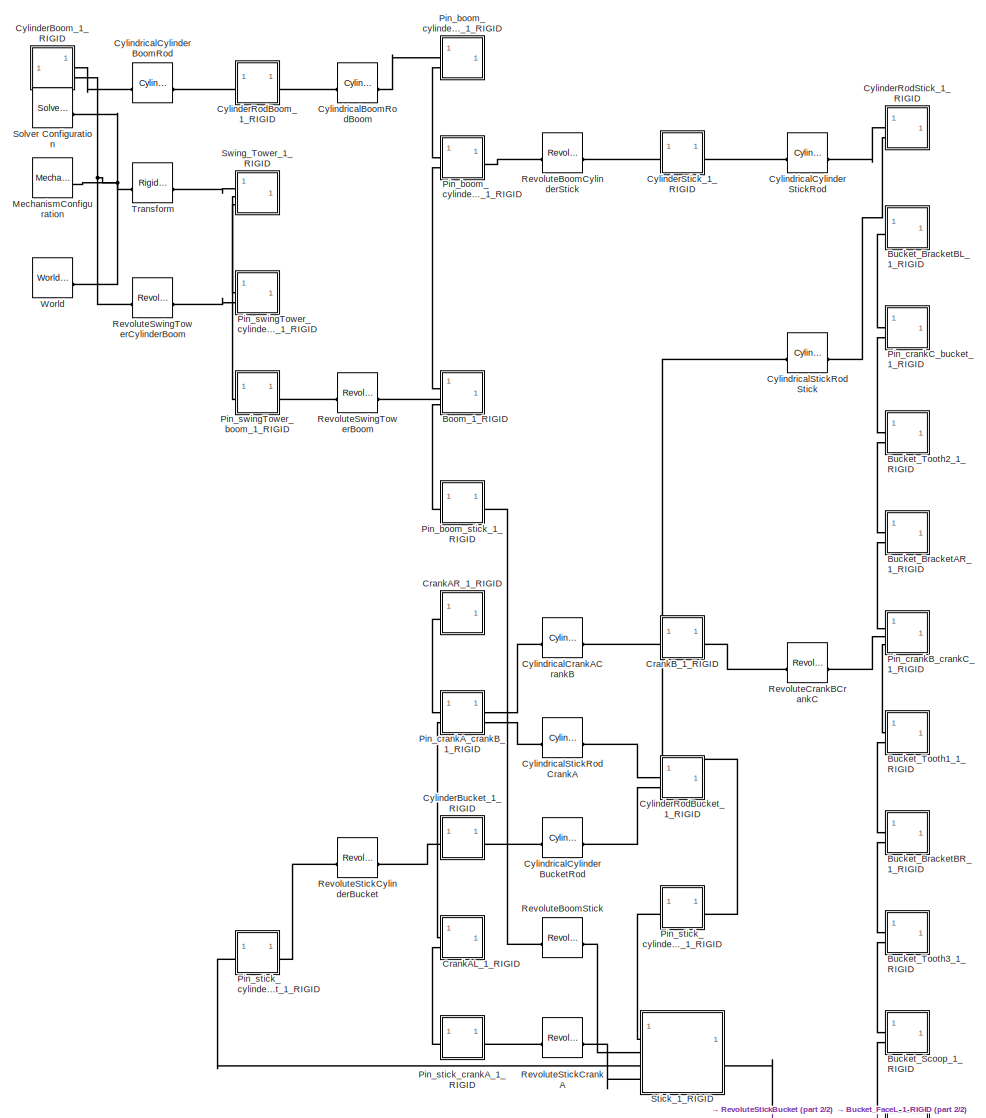
[diagram: root canvas - part 1/2, full width, middle band]
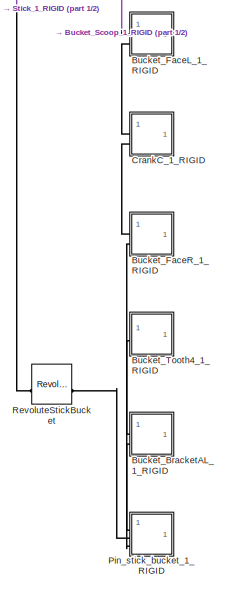
[diagram: root canvas - part 2/2, bottom right region]
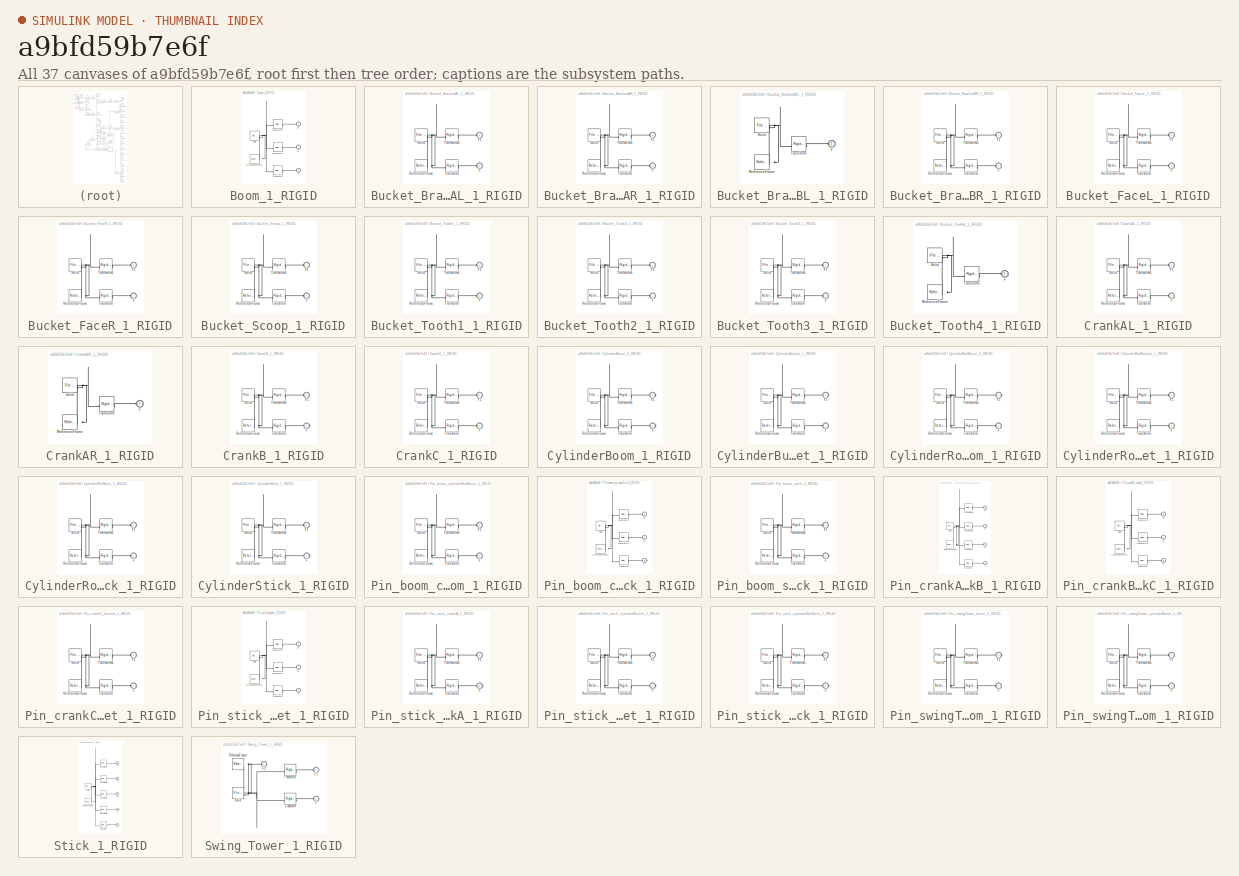
[diagram: thumbnail index - all 37 canvases of the model, root first then tree order]
MODEL slx_a9bfd59b7e6f
KIND model
CONFIG SolverName = VariableStepAuto
WORKSPACE source: external: MATLAB File  (data not in archive)
BLOCK [SubSystem] Boom_1_RIGID
BLOCK [PMIOPort] Boom_1_RIGID/F
  Port = 3
  Side = Left
BLOCK [PMIOPort] Boom_1_RIGID/F1
  Port = 2
  Side = Left
BLOCK [PMIOPort] Boom_1_RIGID/F2
  Side = Left
BLOCK [Reference] Boom_1_RIGID/ReferenceFrame  REF=sm_lib/Frames and
Transforms/Reference
Frame
  SourceBlock = sm_lib/Frames and\nTransforms/Reference\nFrame
  SourceType = Reference\nFrame
BLOCK [Reference] Boom_1_RIGID/Solid  REF=sm_lib/Body Elements/File Solid
  SourceBlock = sm_lib/Body Elements/File Solid
  SourceType = File Solid
BLOCK [Reference] Boom_1_RIGID/Transform  REF=sm_lib/Frames and
Transforms/Rigid
Transform
  SourceBlock = sm_lib/Frames and\nTransforms/Rigid\nTransform
  SourceType = Rigid\nTransform
BLOCK [Reference] Boom_1_RIGID/Transform1  REF=sm_lib/Frames and
Transforms/Rigid
Transform
  SourceBlock = sm_lib/Frames and\nTransforms/Rigid\nTransform
  SourceType = Rigid\nTransform
BLOCK [Reference] Boom_1_RIGID/Transform2  REF=sm_lib/Frames and
Transforms/Rigid
Transform
  SourceBlock = sm_lib/Frames and\nTransforms/Rigid\nTransform
  SourceType = Rigid\nTransform
BLOCK [SubSystem] Bucket_BracketAL_1_RIGID
BLOCK [PMIOPort] Bucket_BracketAL_1_RIGID/F
  Port = 2
  Side = Left
BLOCK [PMIOPort] Bucket_BracketAL_1_RIGID/F1
  Side = Left
BLOCK [Reference] Bucket_BracketAL_1_RIGID/ReferenceFrame  REF=sm_lib/Frames and
Transforms/Reference
Frame
  SourceBlock = sm_lib/Frames and\nTransforms/Reference\nFrame
  SourceType = Reference\nFrame
BLOCK [Reference] Bucket_BracketAL_1_RIGID/Solid  REF=sm_lib/Body Elements/File Solid
  SourceBlock = sm_lib/Body Elements/File Solid
  SourceType = File Solid
BLOCK [Reference] Bucket_BracketAL_1_RIGID/Transform  REF=sm_lib/Frames and
Transforms/Rigid
Transform
  SourceBlock = sm_lib/Frames and\nTransforms/Rigid\nTransform
  SourceType = Rigid\nTransform
BLOCK [Reference] Bucket_BracketAL_1_RIGID/Transform1  REF=sm_lib/Frames and
Transforms/Rigid
Transform
  SourceBlock = sm_lib/Frames and\nTransforms/Rigid\nTransform
  SourceType = Rigid\nTransform
BLOCK [SubSystem] Bucket_BracketAR_1_RIGID
BLOCK [PMIOPort] Bucket_BracketAR_1_RIGID/F
  Side = Left
BLOCK [PMIOPort] Bucket_BracketAR_1_RIGID/F1
  Port = 2
  Side = Left
BLOCK [Reference] Bucket_BracketAR_1_RIGID/ReferenceFrame  REF=sm_lib/Frames and
Transforms/Reference
Frame
  SourceBlock = sm_lib/Frames and\nTransforms/Reference\nFrame
  SourceType = Reference\nFrame
BLOCK [Reference] Bucket_BracketAR_1_RIGID/Solid  REF=sm_lib/Body Elements/File Solid
  SourceBlock = sm_lib/Body Elements/File Solid
  SourceType = File Solid
BLOCK [Reference] Bucket_BracketAR_1_RIGID/Transform  REF=sm_lib/Frames and
Transforms/Rigid
Transform
  SourceBlock = sm_lib/Frames and\nTransforms/Rigid\nTransform
  SourceType = Rigid\nTransform
BLOCK [Reference] Bucket_BracketAR_1_RIGID/Transform1  REF=sm_lib/Frames and
Transforms/Rigid
Transform
  SourceBlock = sm_lib/Frames and\nTransforms/Rigid\nTransform
  SourceType = Rigid\nTransform
BLOCK [SubSystem] Bucket_BracketBL_1_RIGID
BLOCK [PMIOPort] Bucket_BracketBL_1_RIGID/F
  Side = Left
BLOCK [Reference] Bucket_BracketBL_1_RIGID/ReferenceFrame  REF=sm_lib/Frames and
Transforms/Reference
Frame
  SourceBlock = sm_lib/Frames and\nTransforms/Reference\nFrame
  SourceType = Reference\nFrame
BLOCK [Reference] Bucket_BracketBL_1_RIGID/Solid  REF=sm_lib/Body Elements/File Solid
  SourceBlock = sm_lib/Body Elements/File Solid
  SourceType = File Solid
BLOCK [Reference] Bucket_BracketBL_1_RIGID/Transform  REF=sm_lib/Frames and
Transforms/Rigid
Transform
  SourceBlock = sm_lib/Frames and\nTransforms/Rigid\nTransform
  SourceType = Rigid\nTransform
BLOCK [SubSystem] Bucket_BracketBR_1_RIGID
BLOCK [PMIOPort] Bucket_BracketBR_1_RIGID/F
  Port = 2
  Side = Left
BLOCK [PMIOPort] Bucket_BracketBR_1_RIGID/F1
  Side = Left
BLOCK [Reference] Bucket_BracketBR_1_RIGID/ReferenceFrame  REF=sm_lib/Frames and
Transforms/Reference
Frame
  SourceBlock = sm_lib/Frames and\nTransforms/Reference\nFrame
  SourceType = Reference\nFrame
BLOCK [Reference] Bucket_BracketBR_1_RIGID/Solid  REF=sm_lib/Body Elements/File Solid
  SourceBlock = sm_lib/Body Elements/File Solid
  SourceType = File Solid
BLOCK [Reference] Bucket_BracketBR_1_RIGID/Transform  REF=sm_lib/Frames and
Transforms/Rigid
Transform
  SourceBlock = sm_lib/Frames and\nTransforms/Rigid\nTransform
  SourceType = Rigid\nTransform
BLOCK [Reference] Bucket_BracketBR_1_RIGID/Transform1  REF=sm_lib/Frames and
Transforms/Rigid
Transform
  SourceBlock = sm_lib/Frames and\nTransforms/Rigid\nTransform
  SourceType = Rigid\nTransform
BLOCK [SubSystem] Bucket_FaceL_1_RIGID
BLOCK [PMIOPort] Bucket_FaceL_1_RIGID/F
  Side = Left
BLOCK [PMIOPort] Bucket_FaceL_1_RIGID/F1
  Port = 2
  Side = Left
BLOCK [Reference] Bucket_FaceL_1_RIGID/ReferenceFrame  REF=sm_lib/Frames and
Transforms/Reference
Frame
  SourceBlock = sm_lib/Frames and\nTransforms/Reference\nFrame
  SourceType = Reference\nFrame
BLOCK [Reference] Bucket_FaceL_1_RIGID/Solid  REF=sm_lib/Body Elements/File Solid
  SourceBlock = sm_lib/Body Elements/File Solid
  SourceType = File Solid
BLOCK [Reference] Bucket_FaceL_1_RIGID/Transform  REF=sm_lib/Frames and
Transforms/Rigid
Transform
  SourceBlock = sm_lib/Frames and\nTransforms/Rigid\nTransform
  SourceType = Rigid\nTransform
BLOCK [Reference] Bucket_FaceL_1_RIGID/Transform1  REF=sm_lib/Frames and
Transforms/Rigid
Transform
  SourceBlock = sm_lib/Frames and\nTransforms/Rigid\nTransform
  SourceType = Rigid\nTransform
BLOCK [SubSystem] Bucket_FaceR_1_RIGID
BLOCK [PMIOPort] Bucket_FaceR_1_RIGID/F
  Port = 2
  Side = Left
BLOCK [PMIOPort] Bucket_FaceR_1_RIGID/F1
  Side = Left
BLOCK [Reference] Bucket_FaceR_1_RIGID/ReferenceFrame  REF=sm_lib/Frames and
Transforms/Reference
Frame
  SourceBlock = sm_lib/Frames and\nTransforms/Reference\nFrame
  SourceType = Reference\nFrame
BLOCK [Reference] Bucket_FaceR_1_RIGID/Solid  REF=sm_lib/Body Elements/File Solid
  SourceBlock = sm_lib/Body Elements/File Solid
  SourceType = File Solid
BLOCK [Reference] Bucket_FaceR_1_RIGID/Transform  REF=sm_lib/Frames and
Transforms/Rigid
Transform
  SourceBlock = sm_lib/Frames and\nTransforms/Rigid\nTransform
  SourceType = Rigid\nTransform
BLOCK [Reference] Bucket_FaceR_1_RIGID/Transform1  REF=sm_lib/Frames and
Transforms/Rigid
Transform
  SourceBlock = sm_lib/Frames and\nTransforms/Rigid\nTransform
  SourceType = Rigid\nTransform
BLOCK [SubSystem] Bucket_Scoop_1_RIGID
BLOCK [PMIOPort] Bucket_Scoop_1_RIGID/F
  Port = 2
  Side = Left
BLOCK [PMIOPort] Bucket_Scoop_1_RIGID/F1
  Side = Left
BLOCK [Reference] Bucket_Scoop_1_RIGID/ReferenceFrame  REF=sm_lib/Frames and
Transforms/Reference
Frame
  SourceBlock = sm_lib/Frames and\nTransforms/Reference\nFrame
  SourceType = Reference\nFrame
BLOCK [Reference] Bucket_Scoop_1_RIGID/Solid  REF=sm_lib/Body Elements/File Solid
  SourceBlock = sm_lib/Body Elements/File Solid
  SourceType = File Solid
BLOCK [Reference] Bucket_Scoop_1_RIGID/Transform  REF=sm_lib/Frames and
Transforms/Rigid
Transform
  SourceBlock = sm_lib/Frames and\nTransforms/Rigid\nTransform
  SourceType = Rigid\nTransform
BLOCK [Reference] Bucket_Scoop_1_RIGID/Transform1  REF=sm_lib/Frames and
Transforms/Rigid
Transform
  SourceBlock = sm_lib/Frames and\nTransforms/Rigid\nTransform
  SourceType = Rigid\nTransform
BLOCK [SubSystem] Bucket_Tooth1_1_RIGID
BLOCK [PMIOPort] Bucket_Tooth1_1_RIGID/F
  Port = 2
  Side = Left
BLOCK [PMIOPort] Bucket_Tooth1_1_RIGID/F1
  Side = Left
BLOCK [Reference] Bucket_Tooth1_1_RIGID/ReferenceFrame  REF=sm_lib/Frames and
Transforms/Reference
Frame
  SourceBlock = sm_lib/Frames and\nTransforms/Reference\nFrame
  SourceType = Reference\nFrame
BLOCK [Reference] Bucket_Tooth1_1_RIGID/Solid  REF=sm_lib/Body Elements/File Solid
  SourceBlock = sm_lib/Body Elements/File Solid
  SourceType = File Solid
BLOCK [Reference] Bucket_Tooth1_1_RIGID/Transform  REF=sm_lib/Frames and
Transforms/Rigid
Transform
  SourceBlock = sm_lib/Frames and\nTransforms/Rigid\nTransform
  SourceType = Rigid\nTransform
BLOCK [Reference] Bucket_Tooth1_1_RIGID/Transform1  REF=sm_lib/Frames and
Transforms/Rigid
Transform
  SourceBlock = sm_lib/Frames and\nTransforms/Rigid\nTransform
  SourceType = Rigid\nTransform
BLOCK [SubSystem] Bucket_Tooth2_1_RIGID
BLOCK [PMIOPort] Bucket_Tooth2_1_RIGID/F
  Side = Left
BLOCK [PMIOPort] Bucket_Tooth2_1_RIGID/F1
  Port = 2
  Side = Left
BLOCK [Reference] Bucket_Tooth2_1_RIGID/ReferenceFrame  REF=sm_lib/Frames and
Transforms/Reference
Frame
  SourceBlock = sm_lib/Frames and\nTransforms/Reference\nFrame
  SourceType = Reference\nFrame
BLOCK [Reference] Bucket_Tooth2_1_RIGID/Solid  REF=sm_lib/Body Elements/File Solid
  SourceBlock = sm_lib/Body Elements/File Solid
  SourceType = File Solid
BLOCK [Reference] Bucket_Tooth2_1_RIGID/Transform  REF=sm_lib/Frames and
Transforms/Rigid
Transform
  SourceBlock = sm_lib/Frames and\nTransforms/Rigid\nTransform
  SourceType = Rigid\nTransform
BLOCK [Reference] Bucket_Tooth2_1_RIGID/Transform1  REF=sm_lib/Frames and
Transforms/Rigid
Transform
  SourceBlock = sm_lib/Frames and\nTransforms/Rigid\nTransform
  SourceType = Rigid\nTransform
BLOCK [SubSystem] Bucket_Tooth3_1_RIGID
BLOCK [PMIOPort] Bucket_Tooth3_1_RIGID/F
  Port = 2
  Side = Left
BLOCK [PMIOPort] Bucket_Tooth3_1_RIGID/F1
  Side = Left
BLOCK [Reference] Bucket_Tooth3_1_RIGID/ReferenceFrame  REF=sm_lib/Frames and
Transforms/Reference
Frame
  SourceBlock = sm_lib/Frames and\nTransforms/Reference\nFrame
  SourceType = Reference\nFrame
BLOCK [Reference] Bucket_Tooth3_1_RIGID/Solid  REF=sm_lib/Body Elements/File Solid
  SourceBlock = sm_lib/Body Elements/File Solid
  SourceType = File Solid
BLOCK [Reference] Bucket_Tooth3_1_RIGID/Transform  REF=sm_lib/Frames and
Transforms/Rigid
Transform
  SourceBlock = sm_lib/Frames and\nTransforms/Rigid\nTransform
  SourceType = Rigid\nTransform
BLOCK [Reference] Bucket_Tooth3_1_RIGID/Transform1  REF=sm_lib/Frames and
Transforms/Rigid
Transform
  SourceBlock = sm_lib/Frames and\nTransforms/Rigid\nTransform
  SourceType = Rigid\nTransform
BLOCK [SubSystem] Bucket_Tooth4_1_RIGID
BLOCK [PMIOPort] Bucket_Tooth4_1_RIGID/F
  Side = Left
BLOCK [Reference] Bucket_Tooth4_1_RIGID/ReferenceFrame  REF=sm_lib/Frames and
Transforms/Reference
Frame
  SourceBlock = sm_lib/Frames and\nTransforms/Reference\nFrame
  SourceType = Reference\nFrame
BLOCK [Reference] Bucket_Tooth4_1_RIGID/Solid  REF=sm_lib/Body Elements/File Solid
  SourceBlock = sm_lib/Body Elements/File Solid
  SourceType = File Solid
BLOCK [Reference] Bucket_Tooth4_1_RIGID/Transform  REF=sm_lib/Frames and
Transforms/Rigid
Transform
  SourceBlock = sm_lib/Frames and\nTransforms/Rigid\nTransform
  SourceType = Rigid\nTransform
BLOCK [SubSystem] CrankAL_1_RIGID
BLOCK [PMIOPort] CrankAL_1_RIGID/F
  Port = 2
  Side = Left
BLOCK [PMIOPort] CrankAL_1_RIGID/F1
  Side = Left
BLOCK [Reference] CrankAL_1_RIGID/ReferenceFrame  REF=sm_lib/Frames and
Transforms/Reference
Frame
  SourceBlock = sm_lib/Frames and\nTransforms/Reference\nFrame
  SourceType = Reference\nFrame
BLOCK [Reference] CrankAL_1_RIGID/Solid  REF=sm_lib/Body Elements/File Solid
  SourceBlock = sm_lib/Body Elements/File Solid
  SourceType = File Solid
BLOCK [Reference] CrankAL_1_RIGID/Transform  REF=sm_lib/Frames and
Transforms/Rigid
Transform
  SourceBlock = sm_lib/Frames and\nTransforms/Rigid\nTransform
  SourceType = Rigid\nTransform
BLOCK [Reference] CrankAL_1_RIGID/Transform1  REF=sm_lib/Frames and
Transforms/Rigid
Transform
  SourceBlock = sm_lib/Frames and\nTransforms/Rigid\nTransform
  SourceType = Rigid\nTransform
BLOCK [SubSystem] CrankAR_1_RIGID
BLOCK [PMIOPort] CrankAR_1_RIGID/F
  Side = Left
BLOCK [Reference] CrankAR_1_RIGID/ReferenceFrame  REF=sm_lib/Frames and
Transforms/Reference
Frame
  SourceBlock = sm_lib/Frames and\nTransforms/Reference\nFrame
  SourceType = Reference\nFrame
BLOCK [Reference] CrankAR_1_RIGID/Solid  REF=sm_lib/Body Elements/File Solid
  SourceBlock = sm_lib/Body Elements/File Solid
  SourceType = File Solid
BLOCK [Reference] CrankAR_1_RIGID/Transform  REF=sm_lib/Frames and
Transforms/Rigid
Transform
  SourceBlock = sm_lib/Frames and\nTransforms/Rigid\nTransform
  SourceType = Rigid\nTransform
BLOCK [SubSystem] CrankB_1_RIGID
BLOCK [PMIOPort] CrankB_1_RIGID/F
  Port = 2
  Side = Right
BLOCK [PMIOPort] CrankB_1_RIGID/F1
  Side = Left
BLOCK [Reference] CrankB_1_RIGID/ReferenceFrame  REF=sm_lib/Frames and
Transforms/Reference
Frame
  SourceBlock = sm_lib/Frames and\nTransforms/Reference\nFrame
  SourceType = Reference\nFrame
BLOCK [Reference] CrankB_1_RIGID/Solid  REF=sm_lib/Body Elements/File Solid
  SourceBlock = sm_lib/Body Elements/File Solid
  SourceType = File Solid
BLOCK [Reference] CrankB_1_RIGID/Transform  REF=sm_lib/Frames and
Transforms/Rigid
Transform
  SourceBlock = sm_lib/Frames and\nTransforms/Rigid\nTransform
  SourceType = Rigid\nTransform
BLOCK [Reference] CrankB_1_RIGID/Transform1  REF=sm_lib/Frames and
Transforms/Rigid
Transform
  SourceBlock = sm_lib/Frames and\nTransforms/Rigid\nTransform
  SourceType = Rigid\nTransform
BLOCK [SubSystem] CrankC_1_RIGID
BLOCK [PMIOPort] CrankC_1_RIGID/F
  Side = Left
BLOCK [PMIOPort] CrankC_1_RIGID/F1
  Port = 2
  Side = Left
BLOCK [Reference] CrankC_1_RIGID/ReferenceFrame  REF=sm_lib/Frames and
Transforms/Reference
Frame
  SourceBlock = sm_lib/Frames and\nTransforms/Reference\nFrame
  SourceType = Reference\nFrame
BLOCK [Reference] CrankC_1_RIGID/Solid  REF=sm_lib/Body Elements/File Solid
  SourceBlock = sm_lib/Body Elements/File Solid
  SourceType = File Solid
BLOCK [Reference] CrankC_1_RIGID/Transform  REF=sm_lib/Frames and
Transforms/Rigid
Transform
  SourceBlock = sm_lib/Frames and\nTransforms/Rigid\nTransform
  SourceType = Rigid\nTransform
BLOCK [Reference] CrankC_1_RIGID/Transform1  REF=sm_lib/Frames and
Transforms/Rigid
Transform
  SourceBlock = sm_lib/Frames and\nTransforms/Rigid\nTransform
  SourceType = Rigid\nTransform
BLOCK [SubSystem] CylinderBoom_1_RIGID
BLOCK [PMIOPort] CylinderBoom_1_RIGID/F
  Side = Right
BLOCK [PMIOPort] CylinderBoom_1_RIGID/F1
  Port = 2
  Side = Right
BLOCK [Reference] CylinderBoom_1_RIGID/ReferenceFrame  REF=sm_lib/Frames and
Transforms/Reference
Frame
  SourceBlock = sm_lib/Frames and\nTransforms/Reference\nFrame
  SourceType = Reference\nFrame
BLOCK [Reference] CylinderBoom_1_RIGID/Solid  REF=sm_lib/Body Elements/File Solid
  SourceBlock = sm_lib/Body Elements/File Solid
  SourceType = File Solid
BLOCK [Reference] CylinderBoom_1_RIGID/Transform  REF=sm_lib/Frames and
Transforms/Rigid
Transform
  SourceBlock = sm_lib/Frames and\nTransforms/Rigid\nTransform
  SourceType = Rigid\nTransform
BLOCK [Reference] CylinderBoom_1_RIGID/Transform1  REF=sm_lib/Frames and
Transforms/Rigid
Transform
  SourceBlock = sm_lib/Frames and\nTransforms/Rigid\nTransform
  SourceType = Rigid\nTransform
BLOCK [SubSystem] CylinderBucket_1_RIGID
BLOCK [PMIOPort] CylinderBucket_1_RIGID/F
  Side = Left
BLOCK [PMIOPort] CylinderBucket_1_RIGID/F1
  Port = 2
  Side = Right
BLOCK [Reference] CylinderBucket_1_RIGID/ReferenceFrame  REF=sm_lib/Frames and
Transforms/Reference
Frame
  SourceBlock = sm_lib/Frames and\nTransforms/Reference\nFrame
  SourceType = Reference\nFrame
BLOCK [Reference] CylinderBucket_1_RIGID/Solid  REF=sm_lib/Body Elements/File Solid
  SourceBlock = sm_lib/Body Elements/File Solid
  SourceType = File Solid
BLOCK [Reference] CylinderBucket_1_RIGID/Transform  REF=sm_lib/Frames and
Transforms/Rigid
Transform
  SourceBlock = sm_lib/Frames and\nTransforms/Rigid\nTransform
  SourceType = Rigid\nTransform
BLOCK [Reference] CylinderBucket_1_RIGID/Transform1  REF=sm_lib/Frames and
Transforms/Rigid
Transform
  SourceBlock = sm_lib/Frames and\nTransforms/Rigid\nTransform
  SourceType = Rigid\nTransform
BLOCK [SubSystem] CylinderRodBoom_1_RIGID
BLOCK [PMIOPort] CylinderRodBoom_1_RIGID/F
  Side = Left
BLOCK [PMIOPort] CylinderRodBoom_1_RIGID/F1
  Port = 2
  Side = Right
BLOCK [Reference] CylinderRodBoom_1_RIGID/ReferenceFrame  REF=sm_lib/Frames and
Transforms/Reference
Frame
  SourceBlock = sm_lib/Frames and\nTransforms/Reference\nFrame
  SourceType = Reference\nFrame
BLOCK [Reference] CylinderRodBoom_1_RIGID/Solid  REF=sm_lib/Body Elements/File Solid
  SourceBlock = sm_lib/Body Elements/File Solid
  SourceType = File Solid
BLOCK [Reference] CylinderRodBoom_1_RIGID/Transform  REF=sm_lib/Frames and
Transforms/Rigid
Transform
  SourceBlock = sm_lib/Frames and\nTransforms/Rigid\nTransform
  SourceType = Rigid\nTransform
BLOCK [Reference] CylinderRodBoom_1_RIGID/Transform1  REF=sm_lib/Frames and
Transforms/Rigid
Transform
  SourceBlock = sm_lib/Frames and\nTransforms/Rigid\nTransform
  SourceType = Rigid\nTransform
BLOCK [SubSystem] CylinderRodBucket_1_RIGID
BLOCK [PMIOPort] CylinderRodBucket_1_RIGID/F
  Port = 2
  Side = Left
BLOCK [PMIOPort] CylinderRodBucket_1_RIGID/F1
  Side = Left
BLOCK [Reference] CylinderRodBucket_1_RIGID/ReferenceFrame  REF=sm_lib/Frames and
Transforms/Reference
Frame
  SourceBlock = sm_lib/Frames and\nTransforms/Reference\nFrame
  SourceType = Reference\nFrame
BLOCK [Reference] CylinderRodBucket_1_RIGID/Solid  REF=sm_lib/Body Elements/File Solid
  SourceBlock = sm_lib/Body Elements/File Solid
  SourceType = File Solid
BLOCK [Reference] CylinderRodBucket_1_RIGID/Transform  REF=sm_lib/Frames and
Transforms/Rigid
Transform
  SourceBlock = sm_lib/Frames and\nTransforms/Rigid\nTransform
  SourceType = Rigid\nTransform
BLOCK [Reference] CylinderRodBucket_1_RIGID/Transform1  REF=sm_lib/Frames and
Transforms/Rigid
Transform
  SourceBlock = sm_lib/Frames and\nTransforms/Rigid\nTransform
  SourceType = Rigid\nTransform
BLOCK [SubSystem] CylinderRodStick_1_RIGID
BLOCK [PMIOPort] CylinderRodStick_1_RIGID/F
  Side = Left
BLOCK [PMIOPort] CylinderRodStick_1_RIGID/F1
  Port = 2
  Side = Left
BLOCK [Reference] CylinderRodStick_1_RIGID/ReferenceFrame  REF=sm_lib/Frames and
Transforms/Reference
Frame
  SourceBlock = sm_lib/Frames and\nTransforms/Reference\nFrame
  SourceType = Reference\nFrame
BLOCK [Reference] CylinderRodStick_1_RIGID/Solid  REF=sm_lib/Body Elements/File Solid
  SourceBlock = sm_lib/Body Elements/File Solid
  SourceType = File Solid
BLOCK [Reference] CylinderRodStick_1_RIGID/Transform  REF=sm_lib/Frames and
Transforms/Rigid
Transform
  SourceBlock = sm_lib/Frames and\nTransforms/Rigid\nTransform
  SourceType = Rigid\nTransform
BLOCK [Reference] CylinderRodStick_1_RIGID/Transform1  REF=sm_lib/Frames and
Transforms/Rigid
Transform
  SourceBlock = sm_lib/Frames and\nTransforms/Rigid\nTransform
  SourceType = Rigid\nTransform
BLOCK [SubSystem] CylinderStick_1_RIGID
BLOCK [PMIOPort] CylinderStick_1_RIGID/F
  Port = 2
  Side = Right
BLOCK [PMIOPort] CylinderStick_1_RIGID/F1
  Side = Left
BLOCK [Reference] CylinderStick_1_RIGID/ReferenceFrame  REF=sm_lib/Frames and
Transforms/Reference
Frame
  SourceBlock = sm_lib/Frames and\nTransforms/Reference\nFrame
  SourceType = Reference\nFrame
BLOCK [Reference] CylinderStick_1_RIGID/Solid  REF=sm_lib/Body Elements/File Solid
  SourceBlock = sm_lib/Body Elements/File Solid
  SourceType = File Solid
BLOCK [Reference] CylinderStick_1_RIGID/Transform  REF=sm_lib/Frames and
Transforms/Rigid
Transform
  SourceBlock = sm_lib/Frames and\nTransforms/Rigid\nTransform
  SourceType = Rigid\nTransform
BLOCK [Reference] CylinderStick_1_RIGID/Transform1  REF=sm_lib/Frames and
Transforms/Rigid
Transform
  SourceBlock = sm_lib/Frames and\nTransforms/Rigid\nTransform
  SourceType = Rigid\nTransform
BLOCK [Reference] CylindricalBoomRodBoom  REF=sm_lib/Joints/Cylindrical
Joint
  SourceBlock = sm_lib/Joints/Cylindrical\nJoint
  SourceType = Cylindrical\nJoint
BLOCK [Reference] CylindricalCrankACrankB  REF=sm_lib/Joints/Cylindrical
Joint
  SourceBlock = sm_lib/Joints/Cylindrical\nJoint
  SourceType = Cylindrical\nJoint
BLOCK [Reference] CylindricalCylinderBoomRod  REF=sm_lib/Joints/Cylindrical
Joint
  SourceBlock = sm_lib/Joints/Cylindrical\nJoint
  SourceType = Cylindrical\nJoint
BLOCK [Reference] CylindricalCylinderBucketRod  REF=sm_lib/Joints/Cylindrical
Joint
  SourceBlock = sm_lib/Joints/Cylindrical\nJoint
  SourceType = Cylindrical\nJoint
BLOCK [Reference] CylindricalCylinderStickRod  REF=sm_lib/Joints/Cylindrical
Joint
  SourceBlock = sm_lib/Joints/Cylindrical\nJoint
  SourceType = Cylindrical\nJoint
BLOCK [Reference] CylindricalStickRodCrankA  REF=sm_lib/Joints/Cylindrical
Joint
  SourceBlock = sm_lib/Joints/Cylindrical\nJoint
  SourceType = Cylindrical\nJoint
BLOCK [Reference] CylindricalStickRodStick  REF=sm_lib/Joints/Cylindrical
Joint
  SourceBlock = sm_lib/Joints/Cylindrical\nJoint
  SourceType = Cylindrical\nJoint
BLOCK [Reference] MechanismConfiguration  REF=sm_lib/Utilities/Mechanism
Configuration
  SourceBlock = sm_lib/Utilities/Mechanism\nConfiguration
  SourceType = Mechanism\nConfiguration
BLOCK [SubSystem] Pin_boom_cylinderRodBoom_1_RIGID
BLOCK [PMIOPort] Pin_boom_cylinderRodBoom_1_RIGID/F
  Side = Left
BLOCK [PMIOPort] Pin_boom_cylinderRodBoom_1_RIGID/F1
  Port = 2
  Side = Left
BLOCK [Reference] Pin_boom_cylinderRodBoom_1_RIGID/ReferenceFrame  REF=sm_lib/Frames and
Transforms/Reference
Frame
  SourceBlock = sm_lib/Frames and\nTransforms/Reference\nFrame
  SourceType = Reference\nFrame
BLOCK [Reference] Pin_boom_cylinderRodBoom_1_RIGID/Solid  REF=sm_lib/Body Elements/File Solid
  SourceBlock = sm_lib/Body Elements/File Solid
  SourceType = File Solid
BLOCK [Reference] Pin_boom_cylinderRodBoom_1_RIGID/Transform  REF=sm_lib/Frames and
Transforms/Rigid
Transform
  SourceBlock = sm_lib/Frames and\nTransforms/Rigid\nTransform
  SourceType = Rigid\nTransform
BLOCK [Reference] Pin_boom_cylinderRodBoom_1_RIGID/Transform1  REF=sm_lib/Frames and
Transforms/Rigid
Transform
  SourceBlock = sm_lib/Frames and\nTransforms/Rigid\nTransform
  SourceType = Rigid\nTransform
BLOCK [SubSystem] Pin_boom_cylinderStick_1_RIGID
BLOCK [PMIOPort] Pin_boom_cylinderStick_1_RIGID/F
  Port = 3
  Side = Right
BLOCK [PMIOPort] Pin_boom_cylinderStick_1_RIGID/F1
  Port = 2
  Side = Left
BLOCK [PMIOPort] Pin_boom_cylinderStick_1_RIGID/F2
  Side = Left
BLOCK [Reference] Pin_boom_cylinderStick_1_RIGID/ReferenceFrame  REF=sm_lib/Frames and
Transforms/Reference
Frame
  SourceBlock = sm_lib/Frames and\nTransforms/Reference\nFrame
  SourceType = Reference\nFrame
BLOCK [Reference] Pin_boom_cylinderStick_1_RIGID/Solid  REF=sm_lib/Body Elements/File Solid
  SourceBlock = sm_lib/Body Elements/File Solid
  SourceType = File Solid
BLOCK [Reference] Pin_boom_cylinderStick_1_RIGID/Transform  REF=sm_lib/Frames and
Transforms/Rigid
Transform
  SourceBlock = sm_lib/Frames and\nTransforms/Rigid\nTransform
  SourceType = Rigid\nTransform
BLOCK [Reference] Pin_boom_cylinderStick_1_RIGID/Transform1  REF=sm_lib/Frames and
Transforms/Rigid
Transform
  SourceBlock = sm_lib/Frames and\nTransforms/Rigid\nTransform
  SourceType = Rigid\nTransform
BLOCK [Reference] Pin_boom_cylinderStick_1_RIGID/Transform2  REF=sm_lib/Frames and
Transforms/Rigid
Transform
  SourceBlock = sm_lib/Frames and\nTransforms/Rigid\nTransform
  SourceType = Rigid\nTransform
BLOCK [SubSystem] Pin_boom_stick_1_RIGID
BLOCK [PMIOPort] Pin_boom_stick_1_RIGID/F
  Port = 2
  Side = Right
BLOCK [PMIOPort] Pin_boom_stick_1_RIGID/F1
  Side = Left
BLOCK [Reference] Pin_boom_stick_1_RIGID/ReferenceFrame  REF=sm_lib/Frames and
Transforms/Reference
Frame
  SourceBlock = sm_lib/Frames and\nTransforms/Reference\nFrame
  SourceType = Reference\nFrame
BLOCK [Reference] Pin_boom_stick_1_RIGID/Solid  REF=sm_lib/Body Elements/File Solid
  SourceBlock = sm_lib/Body Elements/File Solid
  SourceType = File Solid
BLOCK [Reference] Pin_boom_stick_1_RIGID/Transform  REF=sm_lib/Frames and
Transforms/Rigid
Transform
  SourceBlock = sm_lib/Frames and\nTransforms/Rigid\nTransform
  SourceType = Rigid\nTransform
BLOCK [Reference] Pin_boom_stick_1_RIGID/Transform1  REF=sm_lib/Frames and
Transforms/Rigid
Transform
  SourceBlock = sm_lib/Frames and\nTransforms/Rigid\nTransform
  SourceType = Rigid\nTransform
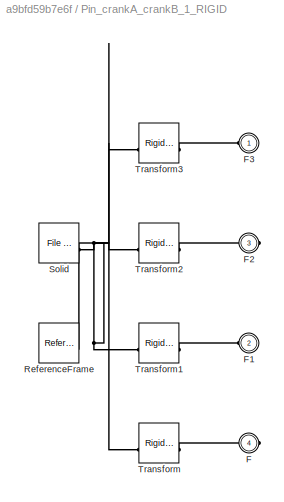
BLOCK [SubSystem] Pin_crankA_crankB_1_RIGID
BLOCK [PMIOPort] Pin_crankA_crankB_1_RIGID/F
  Port = 4
  Side = Right
BLOCK [PMIOPort] Pin_crankA_crankB_1_RIGID/F1
  Port = 2
  Side = Left
BLOCK [PMIOPort] Pin_crankA_crankB_1_RIGID/F2
  Port = 3
  Side = Right
BLOCK [PMIOPort] Pin_crankA_crankB_1_RIGID/F3
  Side = Left
BLOCK [Reference] Pin_crankA_crankB_1_RIGID/ReferenceFrame  REF=sm_lib/Frames and
Transforms/Reference
Frame
  SourceBlock = sm_lib/Frames and\nTransforms/Reference\nFrame
  SourceType = Reference\nFrame
BLOCK [Reference] Pin_crankA_crankB_1_RIGID/Solid  REF=sm_lib/Body Elements/File Solid
  SourceBlock = sm_lib/Body Elements/File Solid
  SourceType = File Solid
BLOCK [Reference] Pin_crankA_crankB_1_RIGID/Transform  REF=sm_lib/Frames and
Transforms/Rigid
Transform
  SourceBlock = sm_lib/Frames and\nTransforms/Rigid\nTransform
  SourceType = Rigid\nTransform
BLOCK [Reference] Pin_crankA_crankB_1_RIGID/Transform1  REF=sm_lib/Frames and
Transforms/Rigid
Transform
  SourceBlock = sm_lib/Frames and\nTransforms/Rigid\nTransform
  SourceType = Rigid\nTransform
BLOCK [Reference] Pin_crankA_crankB_1_RIGID/Transform2  REF=sm_lib/Frames and
Transforms/Rigid
Transform
  SourceBlock = sm_lib/Frames and\nTransforms/Rigid\nTransform
  SourceType = Rigid\nTransform
BLOCK [Reference] Pin_crankA_crankB_1_RIGID/Transform3  REF=sm_lib/Frames and
Transforms/Rigid
Transform
  SourceBlock = sm_lib/Frames and\nTransforms/Rigid\nTransform
  SourceType = Rigid\nTransform
BLOCK [SubSystem] Pin_crankB_crankC_1_RIGID
BLOCK [PMIOPort] Pin_crankB_crankC_1_RIGID/F
  Port = 2
  Side = Left
BLOCK [PMIOPort] Pin_crankB_crankC_1_RIGID/F1
  Side = Left
BLOCK [PMIOPort] Pin_crankB_crankC_1_RIGID/F2
  Port = 3
  Side = Left
BLOCK [Reference] Pin_crankB_crankC_1_RIGID/ReferenceFrame  REF=sm_lib/Frames and
Transforms/Reference
Frame
  SourceBlock = sm_lib/Frames and\nTransforms/Reference\nFrame
  SourceType = Reference\nFrame
BLOCK [Reference] Pin_crankB_crankC_1_RIGID/Solid  REF=sm_lib/Body Elements/File Solid
  SourceBlock = sm_lib/Body Elements/File Solid
  SourceType = File Solid
BLOCK [Reference] Pin_crankB_crankC_1_RIGID/Transform  REF=sm_lib/Frames and
Transforms/Rigid
Transform
  SourceBlock = sm_lib/Frames and\nTransforms/Rigid\nTransform
  SourceType = Rigid\nTransform
BLOCK [Reference] Pin_crankB_crankC_1_RIGID/Transform1  REF=sm_lib/Frames and
Transforms/Rigid
Transform
  SourceBlock = sm_lib/Frames and\nTransforms/Rigid\nTransform
  SourceType = Rigid\nTransform
BLOCK [Reference] Pin_crankB_crankC_1_RIGID/Transform2  REF=sm_lib/Frames and
Transforms/Rigid
Transform
  SourceBlock = sm_lib/Frames and\nTransforms/Rigid\nTransform
  SourceType = Rigid\nTransform
BLOCK [SubSystem] Pin_crankC_bucket_1_RIGID
BLOCK [PMIOPort] Pin_crankC_bucket_1_RIGID/F
  Port = 2
  Side = Left
BLOCK [PMIOPort] Pin_crankC_bucket_1_RIGID/F1
  Side = Left
BLOCK [Reference] Pin_crankC_bucket_1_RIGID/ReferenceFrame  REF=sm_lib/Frames and
Transforms/Reference
Frame
  SourceBlock = sm_lib/Frames and\nTransforms/Reference\nFrame
  SourceType = Reference\nFrame
BLOCK [Reference] Pin_crankC_bucket_1_RIGID/Solid  REF=sm_lib/Body Elements/File Solid
  SourceBlock = sm_lib/Body Elements/File Solid
  SourceType = File Solid
BLOCK [Reference] Pin_crankC_bucket_1_RIGID/Transform  REF=sm_lib/Frames and
Transforms/Rigid
Transform
  SourceBlock = sm_lib/Frames and\nTransforms/Rigid\nTransform
  SourceType = Rigid\nTransform
BLOCK [Reference] Pin_crankC_bucket_1_RIGID/Transform1  REF=sm_lib/Frames and
Transforms/Rigid
Transform
  SourceBlock = sm_lib/Frames and\nTransforms/Rigid\nTransform
  SourceType = Rigid\nTransform
BLOCK [SubSystem] Pin_stick_bucket_1_RIGID
BLOCK [PMIOPort] Pin_stick_bucket_1_RIGID/F
  Port = 2
  Side = Left
BLOCK [PMIOPort] Pin_stick_bucket_1_RIGID/F1
  Side = Left
BLOCK [PMIOPort] Pin_stick_bucket_1_RIGID/F2
  Port = 3
  Side = Left
BLOCK [Reference] Pin_stick_bucket_1_RIGID/ReferenceFrame  REF=sm_lib/Frames and
Transforms/Reference
Frame
  SourceBlock = sm_lib/Frames and\nTransforms/Reference\nFrame
  SourceType = Reference\nFrame
BLOCK [Reference] Pin_stick_bucket_1_RIGID/Solid  REF=sm_lib/Body Elements/File Solid
  SourceBlock = sm_lib/Body Elements/File Solid
  SourceType = File Solid
BLOCK [Reference] Pin_stick_bucket_1_RIGID/Transform  REF=sm_lib/Frames and
Transforms/Rigid
Transform
  SourceBlock = sm_lib/Frames and\nTransforms/Rigid\nTransform
  SourceType = Rigid\nTransform
BLOCK [Reference] Pin_stick_bucket_1_RIGID/Transform1  REF=sm_lib/Frames and
Transforms/Rigid
Transform
  SourceBlock = sm_lib/Frames and\nTransforms/Rigid\nTransform
  SourceType = Rigid\nTransform
BLOCK [Reference] Pin_stick_bucket_1_RIGID/Transform2  REF=sm_lib/Frames and
Transforms/Rigid
Transform
  SourceBlock = sm_lib/Frames and\nTransforms/Rigid\nTransform
  SourceType = Rigid\nTransform
BLOCK [SubSystem] Pin_stick_crankA_1_RIGID
BLOCK [PMIOPort] Pin_stick_crankA_1_RIGID/F
  Port = 2
  Side = Right
BLOCK [PMIOPort] Pin_stick_crankA_1_RIGID/F1
  Side = Left
BLOCK [Reference] Pin_stick_crankA_1_RIGID/ReferenceFrame  REF=sm_lib/Frames and
Transforms/Reference
Frame
  SourceBlock = sm_lib/Frames and\nTransforms/Reference\nFrame
  SourceType = Reference\nFrame
BLOCK [Reference] Pin_stick_crankA_1_RIGID/Solid  REF=sm_lib/Body Elements/File Solid
  SourceBlock = sm_lib/Body Elements/File Solid
  SourceType = File Solid
BLOCK [Reference] Pin_stick_crankA_1_RIGID/Transform  REF=sm_lib/Frames and
Transforms/Rigid
Transform
  SourceBlock = sm_lib/Frames and\nTransforms/Rigid\nTransform
  SourceType = Rigid\nTransform
BLOCK [Reference] Pin_stick_crankA_1_RIGID/Transform1  REF=sm_lib/Frames and
Transforms/Rigid
Transform
  SourceBlock = sm_lib/Frames and\nTransforms/Rigid\nTransform
  SourceType = Rigid\nTransform
BLOCK [SubSystem] Pin_stick_cylinderBucket_1_RIGID
BLOCK [PMIOPort] Pin_stick_cylinderBucket_1_RIGID/F
  Port = 2
  Side = Right
BLOCK [PMIOPort] Pin_stick_cylinderBucket_1_RIGID/F1
  Side = Left
BLOCK [Reference] Pin_stick_cylinderBucket_1_RIGID/ReferenceFrame  REF=sm_lib/Frames and
Transforms/Reference
Frame
  SourceBlock = sm_lib/Frames and\nTransforms/Reference\nFrame
  SourceType = Reference\nFrame
BLOCK [Reference] Pin_stick_cylinderBucket_1_RIGID/Solid  REF=sm_lib/Body Elements/File Solid
  SourceBlock = sm_lib/Body Elements/File Solid
  SourceType = File Solid
BLOCK [Reference] Pin_stick_cylinderBucket_1_RIGID/Transform  REF=sm_lib/Frames and
Transforms/Rigid
Transform
  SourceBlock = sm_lib/Frames and\nTransforms/Rigid\nTransform
  SourceType = Rigid\nTransform
BLOCK [Reference] Pin_stick_cylinderBucket_1_RIGID/Transform1  REF=sm_lib/Frames and
Transforms/Rigid
Transform
  SourceBlock = sm_lib/Frames and\nTransforms/Rigid\nTransform
  SourceType = Rigid\nTransform
BLOCK [SubSystem] Pin_stick_cylinderRodStick_1_RIGID
BLOCK [PMIOPort] Pin_stick_cylinderRodStick_1_RIGID/F
  Port = 2
  Side = Right
BLOCK [PMIOPort] Pin_stick_cylinderRodStick_1_RIGID/F1
  Side = Left
BLOCK [Reference] Pin_stick_cylinderRodStick_1_RIGID/ReferenceFrame  REF=sm_lib/Frames and
Transforms/Reference
Frame
  SourceBlock = sm_lib/Frames and\nTransforms/Reference\nFrame
  SourceType = Reference\nFrame
BLOCK [Reference] Pin_stick_cylinderRodStick_1_RIGID/Solid  REF=sm_lib/Body Elements/File Solid
  SourceBlock = sm_lib/Body Elements/File Solid
  SourceType = File Solid
BLOCK [Reference] Pin_stick_cylinderRodStick_1_RIGID/Transform  REF=sm_lib/Frames and
Transforms/Rigid
Transform
  SourceBlock = sm_lib/Frames and\nTransforms/Rigid\nTransform
  SourceType = Rigid\nTransform
BLOCK [Reference] Pin_stick_cylinderRodStick_1_RIGID/Transform1  REF=sm_lib/Frames and
Transforms/Rigid
Transform
  SourceBlock = sm_lib/Frames and\nTransforms/Rigid\nTransform
  SourceType = Rigid\nTransform
BLOCK [SubSystem] Pin_swingTower_boom_1_RIGID
BLOCK [PMIOPort] Pin_swingTower_boom_1_RIGID/F
  Side = Left
BLOCK [PMIOPort] Pin_swingTower_boom_1_RIGID/F1
  Port = 2
  Side = Right
BLOCK [Reference] Pin_swingTower_boom_1_RIGID/ReferenceFrame  REF=sm_lib/Frames and
Transforms/Reference
Frame
  SourceBlock = sm_lib/Frames and\nTransforms/Reference\nFrame
  SourceType = Reference\nFrame
BLOCK [Reference] Pin_swingTower_boom_1_RIGID/Solid  REF=sm_lib/Body Elements/File Solid
  SourceBlock = sm_lib/Body Elements/File Solid
  SourceType = File Solid
BLOCK [Reference] Pin_swingTower_boom_1_RIGID/Transform  REF=sm_lib/Frames and
Transforms/Rigid
Transform
  SourceBlock = sm_lib/Frames and\nTransforms/Rigid\nTransform
  SourceType = Rigid\nTransform
BLOCK [Reference] Pin_swingTower_boom_1_RIGID/Transform1  REF=sm_lib/Frames and
Transforms/Rigid
Transform
  SourceBlock = sm_lib/Frames and\nTransforms/Rigid\nTransform
  SourceType = Rigid\nTransform
BLOCK [SubSystem] Pin_swingTower_cylinderBoom_1_RIGID
BLOCK [PMIOPort] Pin_swingTower_cylinderBoom_1_RIGID/F
  Port = 2
  Side = Left
BLOCK [PMIOPort] Pin_swingTower_cylinderBoom_1_RIGID/F1
  Side = Left
BLOCK [Reference] Pin_swingTower_cylinderBoom_1_RIGID/ReferenceFrame  REF=sm_lib/Frames and
Transforms/Reference
Frame
  SourceBlock = sm_lib/Frames and\nTransforms/Reference\nFrame
  SourceType = Reference\nFrame
BLOCK [Reference] Pin_swingTower_cylinderBoom_1_RIGID/Solid  REF=sm_lib/Body Elements/File Solid
  SourceBlock = sm_lib/Body Elements/File Solid
  SourceType = File Solid
BLOCK [Reference] Pin_swingTower_cylinderBoom_1_RIGID/Transform  REF=sm_lib/Frames and
Transforms/Rigid
Transform
  SourceBlock = sm_lib/Frames and\nTransforms/Rigid\nTransform
  SourceType = Rigid\nTransform
BLOCK [Reference] Pin_swingTower_cylinderBoom_1_RIGID/Transform1  REF=sm_lib/Frames and
Transforms/Rigid
Transform
  SourceBlock = sm_lib/Frames and\nTransforms/Rigid\nTransform
  SourceType = Rigid\nTransform
BLOCK [Reference] RevoluteBoomCylinderStick  REF=sm_lib/Joints/Revolute Joint
  SourceBlock = sm_lib/Joints/Revolute Joint
  SourceType = Revolute Joint
BLOCK [Reference] RevoluteBoomStick  REF=sm_lib/Joints/Revolute Joint
  SourceBlock = sm_lib/Joints/Revolute Joint
  SourceType = Revolute Joint
BLOCK [Reference] RevoluteCrankBCrankC  REF=sm_lib/Joints/Revolute Joint
  SourceBlock = sm_lib/Joints/Revolute Joint
  SourceType = Revolute Joint
BLOCK [Reference] RevoluteStickBucket  REF=sm_lib/Joints/Revolute Joint
  SourceBlock = sm_lib/Joints/Revolute Joint
  SourceType = Revolute Joint
BLOCK [Reference] RevoluteStickCrankA  REF=sm_lib/Joints/Revolute Joint
  SourceBlock = sm_lib/Joints/Revolute Joint
  SourceType = Revolute Joint
BLOCK [Reference] RevoluteStickCylinderBucket  REF=sm_lib/Joints/Revolute Joint
  SourceBlock = sm_lib/Joints/Revolute Joint
  SourceType = Revolute Joint
BLOCK [Reference] RevoluteSwingTowerBoom  REF=sm_lib/Joints/Revolute Joint
  SourceBlock = sm_lib/Joints/Revolute Joint
  SourceType = Revolute Joint
BLOCK [Reference] RevoluteSwingTowerCylinderBoom  REF=sm_lib/Joints/Revolute Joint
  SourceBlock = sm_lib/Joints/Revolute Joint
  SourceType = Revolute Joint
BLOCK [Reference] Solver Configuration  REF=nesl_utility/Solver
Configuration
  SourceBlock = nesl_utility/Solver\nConfiguration
  SourceType = Solver\nConfiguration
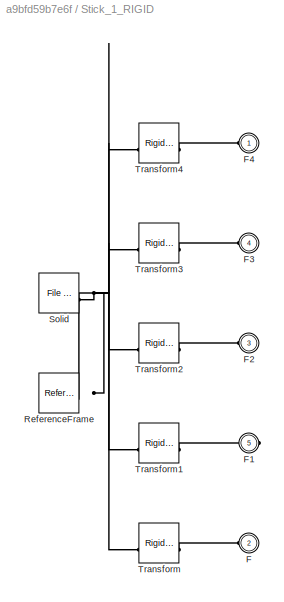
BLOCK [SubSystem] Stick_1_RIGID
BLOCK [PMIOPort] Stick_1_RIGID/F
  Port = 2
  Side = Left
BLOCK [PMIOPort] Stick_1_RIGID/F1
  Port = 5
  Side = Right
BLOCK [PMIOPort] Stick_1_RIGID/F2
  Port = 3
  Side = Left
BLOCK [PMIOPort] Stick_1_RIGID/F3
  Port = 4
  Side = Left
BLOCK [PMIOPort] Stick_1_RIGID/F4
  Side = Left
BLOCK [Reference] Stick_1_RIGID/ReferenceFrame  REF=sm_lib/Frames and
Transforms/Reference
Frame
  SourceBlock = sm_lib/Frames and\nTransforms/Reference\nFrame
  SourceType = Reference\nFrame
BLOCK [Reference] Stick_1_RIGID/Solid  REF=sm_lib/Body Elements/File Solid
  SourceBlock = sm_lib/Body Elements/File Solid
  SourceType = File Solid
BLOCK [Reference] Stick_1_RIGID/Transform  REF=sm_lib/Frames and
Transforms/Rigid
Transform
  SourceBlock = sm_lib/Frames and\nTransforms/Rigid\nTransform
  SourceType = Rigid\nTransform
BLOCK [Reference] Stick_1_RIGID/Transform1  REF=sm_lib/Frames and
Transforms/Rigid
Transform
  SourceBlock = sm_lib/Frames and\nTransforms/Rigid\nTransform
  SourceType = Rigid\nTransform
BLOCK [Reference] Stick_1_RIGID/Transform2  REF=sm_lib/Frames and
Transforms/Rigid
Transform
  SourceBlock = sm_lib/Frames and\nTransforms/Rigid\nTransform
  SourceType = Rigid\nTransform
BLOCK [Reference] Stick_1_RIGID/Transform3  REF=sm_lib/Frames and
Transforms/Rigid
Transform
  SourceBlock = sm_lib/Frames and\nTransforms/Rigid\nTransform
  SourceType = Rigid\nTransform
BLOCK [Reference] Stick_1_RIGID/Transform4  REF=sm_lib/Frames and
Transforms/Rigid
Transform
  SourceBlock = sm_lib/Frames and\nTransforms/Rigid\nTransform
  SourceType = Rigid\nTransform
BLOCK [SubSystem] Swing_Tower_1_RIGID
BLOCK [PMIOPort] Swing_Tower_1_RIGID/F
  Port = 3
  Side = Left
BLOCK [PMIOPort] Swing_Tower_1_RIGID/F1
  Port = 2
  Side = Left
BLOCK [PMIOPort] Swing_Tower_1_RIGID/F2
  Side = Left
BLOCK [Reference] Swing_Tower_1_RIGID/ReferenceFrame  REF=sm_lib/Frames and
Transforms/Reference
Frame
  SourceBlock = sm_lib/Frames and\nTransforms/Reference\nFrame
  SourceType = Reference\nFrame
BLOCK [Reference] Swing_Tower_1_RIGID/Solid  REF=sm_lib/Body Elements/File Solid
  SourceBlock = sm_lib/Body Elements/File Solid
  SourceType = File Solid
BLOCK [Reference] Swing_Tower_1_RIGID/Transform  REF=sm_lib/Frames and
Transforms/Rigid
Transform
  SourceBlock = sm_lib/Frames and\nTransforms/Rigid\nTransform
  SourceType = Rigid\nTransform
BLOCK [Reference] Swing_Tower_1_RIGID/Transform1  REF=sm_lib/Frames and
Transforms/Rigid
Transform
  SourceBlock = sm_lib/Frames and\nTransforms/Rigid\nTransform
  SourceType = Rigid\nTransform
BLOCK [Reference] Transform  REF=sm_lib/Frames and
Transforms/Rigid
Transform
  SourceBlock = sm_lib/Frames and\nTransforms/Rigid\nTransform
  SourceType = Rigid\nTransform
BLOCK [Reference] World  REF=sm_lib/Frames and
Transforms/World Frame
  SourceBlock = sm_lib/Frames and\nTransforms/World Frame
  SourceType = World Frame
PLINE Boom_1_RIGID/F1:RConn1 -- Boom_1_RIGID/Transform1:RConn1
PLINE Boom_1_RIGID/F2:RConn1 -- Boom_1_RIGID/Transform2:RConn1
PLINE Boom_1_RIGID/F:RConn1 -- Boom_1_RIGID/Transform:RConn1
PNET net1: Boom_1_RIGID/ReferenceFrame:RConn1 -- Boom_1_RIGID/Solid:RConn1 -- Boom_1_RIGID/Transform1:LConn1 -- Boom_1_RIGID/Transform2:LConn1 -- Boom_1_RIGID/Transform:LConn1
PLINE Boom_1_RIGID:LConn1 -- Pin_boom_cylinderStick_1_RIGID:LConn2
PLINE Boom_1_RIGID:LConn2 -- RevoluteSwingTowerBoom:RConn1
PLINE Boom_1_RIGID:LConn3 -- Pin_boom_stick_1_RIGID:LConn1
PLINE Bucket_BracketAL_1_RIGID/F1:RConn1 -- Bucket_BracketAL_1_RIGID/Transform1:RConn1
PLINE Bucket_BracketAL_1_RIGID/F:RConn1 -- Bucket_BracketAL_1_RIGID/Transform:RConn1
PNET net2: Bucket_BracketAL_1_RIGID/ReferenceFrame:RConn1 -- Bucket_BracketAL_1_RIGID/Solid:RConn1 -- Bucket_BracketAL_1_RIGID/Transform1:LConn1 -- Bucket_BracketAL_1_RIGID/Transform:LConn1
PLINE Bucket_BracketAL_1_RIGID:LConn1 -- Bucket_Tooth4_1_RIGID:LConn1
PLINE Bucket_BracketAL_1_RIGID:LConn2 -- Pin_stick_bucket_1_RIGID:LConn3
PLINE Bucket_BracketAR_1_RIGID/F1:RConn1 -- Bucket_BracketAR_1_RIGID/Transform1:RConn1
PLINE Bucket_BracketAR_1_RIGID/F:RConn1 -- Bucket_BracketAR_1_RIGID/Transform:RConn1
PNET net3: Bucket_BracketAR_1_RIGID/ReferenceFrame:RConn1 -- Bucket_BracketAR_1_RIGID/Solid:RConn1 -- Bucket_BracketAR_1_RIGID/Transform1:LConn1 -- Bucket_BracketAR_1_RIGID/Transform:LConn1
PLINE Bucket_BracketAR_1_RIGID:LConn1 -- Bucket_Tooth2_1_RIGID:LConn2
PLINE Bucket_BracketAR_1_RIGID:LConn2 -- Pin_crankB_crankC_1_RIGID:LConn1
PLINE Bucket_BracketBL_1_RIGID/F:RConn1 -- Bucket_BracketBL_1_RIGID/Transform:RConn1
PNET net4: Bucket_BracketBL_1_RIGID/ReferenceFrame:RConn1 -- Bucket_BracketBL_1_RIGID/Solid:RConn1 -- Bucket_BracketBL_1_RIGID/Transform:LConn1
PLINE Bucket_BracketBL_1_RIGID:LConn1 -- Pin_crankC_bucket_1_RIGID:LConn1
PLINE Bucket_BracketBR_1_RIGID/F1:RConn1 -- Bucket_BracketBR_1_RIGID/Transform1:RConn1
PLINE Bucket_BracketBR_1_RIGID/F:RConn1 -- Bucket_BracketBR_1_RIGID/Transform:RConn1
PNET net5: Bucket_BracketBR_1_RIGID/ReferenceFrame:RConn1 -- Bucket_BracketBR_1_RIGID/Solid:RConn1 -- Bucket_BracketBR_1_RIGID/Transform1:LConn1 -- Bucket_BracketBR_1_RIGID/Transform:LConn1
PLINE Bucket_BracketBR_1_RIGID:LConn1 -- Bucket_Tooth1_1_RIGID:LConn2
PLINE Bucket_BracketBR_1_RIGID:LConn2 -- Bucket_Tooth3_1_RIGID:LConn1
PLINE Bucket_FaceL_1_RIGID/F1:RConn1 -- Bucket_FaceL_1_RIGID/Transform1:RConn1
PLINE Bucket_FaceL_1_RIGID/F:RConn1 -- Bucket_FaceL_1_RIGID/Transform:RConn1
PNET net6: Bucket_FaceL_1_RIGID/ReferenceFrame:RConn1 -- Bucket_FaceL_1_RIGID/Solid:RConn1 -- Bucket_FaceL_1_RIGID/Transform1:LConn1 -- Bucket_FaceL_1_RIGID/Transform:LConn1
PLINE Bucket_FaceL_1_RIGID:LConn1 -- Bucket_Scoop_1_RIGID:LConn2
PLINE Bucket_FaceL_1_RIGID:LConn2 -- CrankC_1_RIGID:LConn1
PLINE Bucket_FaceR_1_RIGID/F1:RConn1 -- Bucket_FaceR_1_RIGID/Transform1:RConn1
PLINE Bucket_FaceR_1_RIGID/F:RConn1 -- Bucket_FaceR_1_RIGID/Transform:RConn1
PNET net7: Bucket_FaceR_1_RIGID/ReferenceFrame:RConn1 -- Bucket_FaceR_1_RIGID/Solid:RConn1 -- Bucket_FaceR_1_RIGID/Transform1:LConn1 -- Bucket_FaceR_1_RIGID/Transform:LConn1
PLINE Bucket_FaceR_1_RIGID:LConn1 -- CrankC_1_RIGID:LConn2
PLINE Bucket_FaceR_1_RIGID:LConn2 -- Pin_stick_bucket_1_RIGID:LConn1
PLINE Bucket_Scoop_1_RIGID/F1:RConn1 -- Bucket_Scoop_1_RIGID/Transform1:RConn1
PLINE Bucket_Scoop_1_RIGID/F:RConn1 -- Bucket_Scoop_1_RIGID/Transform:RConn1
PNET net8: Bucket_Scoop_1_RIGID/ReferenceFrame:RConn1 -- Bucket_Scoop_1_RIGID/Solid:RConn1 -- Bucket_Scoop_1_RIGID/Transform1:LConn1 -- Bucket_Scoop_1_RIGID/Transform:LConn1
PLINE Bucket_Scoop_1_RIGID:LConn1 -- Bucket_Tooth3_1_RIGID:LConn2
PLINE Bucket_Tooth1_1_RIGID/F1:RConn1 -- Bucket_Tooth1_1_RIGID/Transform1:RConn1
PLINE Bucket_Tooth1_1_RIGID/F:RConn1 -- Bucket_Tooth1_1_RIGID/Transform:RConn1
PNET net9: Bucket_Tooth1_1_RIGID/ReferenceFrame:RConn1 -- Bucket_Tooth1_1_RIGID/Solid:RConn1 -- Bucket_Tooth1_1_RIGID/Transform1:LConn1 -- Bucket_Tooth1_1_RIGID/Transform:LConn1
PLINE Bucket_Tooth1_1_RIGID:LConn1 -- Pin_crankB_crankC_1_RIGID:LConn3
PLINE Bucket_Tooth2_1_RIGID/F1:RConn1 -- Bucket_Tooth2_1_RIGID/Transform1:RConn1
PLINE Bucket_Tooth2_1_RIGID/F:RConn1 -- Bucket_Tooth2_1_RIGID/Transform:RConn1
PNET net10: Bucket_Tooth2_1_RIGID/ReferenceFrame:RConn1 -- Bucket_Tooth2_1_RIGID/Solid:RConn1 -- Bucket_Tooth2_1_RIGID/Transform1:LConn1 -- Bucket_Tooth2_1_RIGID/Transform:LConn1
PLINE Bucket_Tooth2_1_RIGID:LConn1 -- Pin_crankC_bucket_1_RIGID:LConn2
PLINE Bucket_Tooth3_1_RIGID/F1:RConn1 -- Bucket_Tooth3_1_RIGID/Transform1:RConn1
PLINE Bucket_Tooth3_1_RIGID/F:RConn1 -- Bucket_Tooth3_1_RIGID/Transform:RConn1
PNET net11: Bucket_Tooth3_1_RIGID/ReferenceFrame:RConn1 -- Bucket_Tooth3_1_RIGID/Solid:RConn1 -- Bucket_Tooth3_1_RIGID/Transform1:LConn1 -- Bucket_Tooth3_1_RIGID/Transform:LConn1
PLINE Bucket_Tooth4_1_RIGID/F:RConn1 -- Bucket_Tooth4_1_RIGID/Transform:RConn1
PNET net12: Bucket_Tooth4_1_RIGID/ReferenceFrame:RConn1 -- Bucket_Tooth4_1_RIGID/Solid:RConn1 -- Bucket_Tooth4_1_RIGID/Transform:LConn1
PLINE CrankAL_1_RIGID/F1:RConn1 -- CrankAL_1_RIGID/Transform1:RConn1
PLINE CrankAL_1_RIGID/F:RConn1 -- CrankAL_1_RIGID/Transform:RConn1
PNET net13: CrankAL_1_RIGID/ReferenceFrame:RConn1 -- CrankAL_1_RIGID/Solid:RConn1 -- CrankAL_1_RIGID/Transform1:LConn1 -- CrankAL_1_RIGID/Transform:LConn1
PLINE CrankAL_1_RIGID:LConn1 -- Pin_crankA_crankB_1_RIGID:LConn2
PLINE CrankAL_1_RIGID:LConn2 -- Pin_stick_crankA_1_RIGID:LConn1
PLINE CrankAR_1_RIGID/F:RConn1 -- CrankAR_1_RIGID/Transform:RConn1
PNET net14: CrankAR_1_RIGID/ReferenceFrame:RConn1 -- CrankAR_1_RIGID/Solid:RConn1 -- CrankAR_1_RIGID/Transform:LConn1
PLINE CrankAR_1_RIGID:LConn1 -- Pin_crankA_crankB_1_RIGID:LConn1
PLINE CrankB_1_RIGID/F1:RConn1 -- CrankB_1_RIGID/Transform1:RConn1
PLINE CrankB_1_RIGID/F:RConn1 -- CrankB_1_RIGID/Transform:RConn1
PNET net15: CrankB_1_RIGID/ReferenceFrame:RConn1 -- CrankB_1_RIGID/Solid:RConn1 -- CrankB_1_RIGID/Transform1:LConn1 -- CrankB_1_RIGID/Transform:LConn1
PLINE CrankB_1_RIGID:LConn1 -- CylindricalCrankACrankB:RConn1
PLINE CrankB_1_RIGID:RConn1 -- RevoluteCrankBCrankC:LConn1
PLINE CrankC_1_RIGID/F1:RConn1 -- CrankC_1_RIGID/Transform1:RConn1
PLINE CrankC_1_RIGID/F:RConn1 -- CrankC_1_RIGID/Transform:RConn1
PNET net16: CrankC_1_RIGID/ReferenceFrame:RConn1 -- CrankC_1_RIGID/Solid:RConn1 -- CrankC_1_RIGID/Transform1:LConn1 -- CrankC_1_RIGID/Transform:LConn1
PLINE CylinderBoom_1_RIGID/F1:RConn1 -- CylinderBoom_1_RIGID/Transform1:RConn1
PLINE CylinderBoom_1_RIGID/F:RConn1 -- CylinderBoom_1_RIGID/Transform:RConn1
PNET net17: CylinderBoom_1_RIGID/ReferenceFrame:RConn1 -- CylinderBoom_1_RIGID/Solid:RConn1 -- CylinderBoom_1_RIGID/Transform1:LConn1 -- CylinderBoom_1_RIGID/Transform:LConn1
PLINE CylinderBoom_1_RIGID:RConn1 -- CylindricalCylinderBoomRod:LConn1
PLINE CylinderBoom_1_RIGID:RConn2 -- RevoluteSwingTowerCylinderBoom:LConn1
PLINE CylinderBucket_1_RIGID/F1:RConn1 -- CylinderBucket_1_RIGID/Transform1:RConn1
PLINE CylinderBucket_1_RIGID/F:RConn1 -- CylinderBucket_1_RIGID/Transform:RConn1
PNET net18: CylinderBucket_1_RIGID/ReferenceFrame:RConn1 -- CylinderBucket_1_RIGID/Solid:RConn1 -- CylinderBucket_1_RIGID/Transform1:LConn1 -- CylinderBucket_1_RIGID/Transform:LConn1
PLINE CylinderBucket_1_RIGID:LConn1 -- RevoluteStickCylinderBucket:RConn1
PLINE CylinderBucket_1_RIGID:RConn1 -- CylindricalCylinderBucketRod:LConn1
PLINE CylinderRodBoom_1_RIGID/F1:RConn1 -- CylinderRodBoom_1_RIGID/Transform1:RConn1
PLINE CylinderRodBoom_1_RIGID/F:RConn1 -- CylinderRodBoom_1_RIGID/Transform:RConn1
PNET net19: CylinderRodBoom_1_RIGID/ReferenceFrame:RConn1 -- CylinderRodBoom_1_RIGID/Solid:RConn1 -- CylinderRodBoom_1_RIGID/Transform1:LConn1 -- CylinderRodBoom_1_RIGID/Transform:LConn1
PLINE CylinderRodBoom_1_RIGID:LConn1 -- CylindricalCylinderBoomRod:RConn1
PLINE CylinderRodBoom_1_RIGID:RConn1 -- CylindricalBoomRodBoom:LConn1
PLINE CylinderRodBucket_1_RIGID/F1:RConn1 -- CylinderRodBucket_1_RIGID/Transform1:RConn1
PLINE CylinderRodBucket_1_RIGID/F:RConn1 -- CylinderRodBucket_1_RIGID/Transform:RConn1
PNET net20: CylinderRodBucket_1_RIGID/ReferenceFrame:RConn1 -- CylinderRodBucket_1_RIGID/Solid:RConn1 -- CylinderRodBucket_1_RIGID/Transform1:LConn1 -- CylinderRodBucket_1_RIGID/Transform:LConn1
PLINE CylinderRodBucket_1_RIGID:LConn1 -- CylindricalStickRodCrankA:RConn1
PLINE CylinderRodBucket_1_RIGID:LConn2 -- CylindricalCylinderBucketRod:RConn1
PLINE CylinderRodStick_1_RIGID/F1:RConn1 -- CylinderRodStick_1_RIGID/Transform1:RConn1
PLINE CylinderRodStick_1_RIGID/F:RConn1 -- CylinderRodStick_1_RIGID/Transform:RConn1
PNET net21: CylinderRodStick_1_RIGID/ReferenceFrame:RConn1 -- CylinderRodStick_1_RIGID/Solid:RConn1 -- CylinderRodStick_1_RIGID/Transform1:LConn1 -- CylinderRodStick_1_RIGID/Transform:LConn1
PLINE CylinderRodStick_1_RIGID:LConn1 -- CylindricalCylinderStickRod:RConn1
PLINE CylinderRodStick_1_RIGID:LConn2 -- CylindricalStickRodStick:RConn1
PLINE CylinderStick_1_RIGID/F1:RConn1 -- CylinderStick_1_RIGID/Transform1:RConn1
PLINE CylinderStick_1_RIGID/F:RConn1 -- CylinderStick_1_RIGID/Transform:RConn1
PNET net22: CylinderStick_1_RIGID/ReferenceFrame:RConn1 -- CylinderStick_1_RIGID/Solid:RConn1 -- CylinderStick_1_RIGID/Transform1:LConn1 -- CylinderStick_1_RIGID/Transform:LConn1
PLINE CylinderStick_1_RIGID:LConn1 -- RevoluteBoomCylinderStick:RConn1
PLINE CylinderStick_1_RIGID:RConn1 -- CylindricalCylinderStickRod:LConn1
PLINE CylindricalBoomRodBoom:RConn1 -- Pin_boom_cylinderRodBoom_1_RIGID:LConn1
PLINE CylindricalCrankACrankB:LConn1 -- Pin_crankA_crankB_1_RIGID:RConn1
PLINE CylindricalStickRodCrankA:LConn1 -- Pin_crankA_crankB_1_RIGID:RConn2
PLINE CylindricalStickRodStick:LConn1 -- Pin_stick_cylinderRodStick_1_RIGID:RConn1
PNET net23: MechanismConfiguration:RConn1 -- Solver Configuration:RConn1 -- Transform:LConn1 -- World:RConn1
PLINE Pin_boom_cylinderRodBoom_1_RIGID/F1:RConn1 -- Pin_boom_cylinderRodBoom_1_RIGID/Transform1:RConn1
PLINE Pin_boom_cylinderRodBoom_1_RIGID/F:RConn1 -- Pin_boom_cylinderRodBoom_1_RIGID/Transform:RConn1
PNET net24: Pin_boom_cylinderRodBoom_1_RIGID/ReferenceFrame:RConn1 -- Pin_boom_cylinderRodBoom_1_RIGID/Solid:RConn1 -- Pin_boom_cylinderRodBoom_1_RIGID/Transform1:LConn1 -- Pin_boom_cylinderRodBoom_1_RIGID/Transform:LConn1
PLINE Pin_boom_cylinderRodBoom_1_RIGID:LConn2 -- Pin_boom_cylinderStick_1_RIGID:LConn1
PLINE Pin_boom_cylinderStick_1_RIGID/F1:RConn1 -- Pin_boom_cylinderStick_1_RIGID/Transform1:RConn1
PLINE Pin_boom_cylinderStick_1_RIGID/F2:RConn1 -- Pin_boom_cylinderStick_1_RIGID/Transform2:RConn1
PLINE Pin_boom_cylinderStick_1_RIGID/F:RConn1 -- Pin_boom_cylinderStick_1_RIGID/Transform:RConn1
PNET net25: Pin_boom_cylinderStick_1_RIGID/ReferenceFrame:RConn1 -- Pin_boom_cylinderStick_1_RIGID/Solid:RConn1 -- Pin_boom_cylinderStick_1_RIGID/Transform1:LConn1 -- Pin_boom_cylinderStick_1_RIGID/Transform2:LConn1 -- Pin_boom_cylinderStick_1_RIGID/Transform:LConn1
PLINE Pin_boom_cylinderStick_1_RIGID:RConn1 -- RevoluteBoomCylinderStick:LConn1
PLINE Pin_boom_stick_1_RIGID/F1:RConn1 -- Pin_boom_stick_1_RIGID/Transform1:RConn1
PLINE Pin_boom_stick_1_RIGID/F:RConn1 -- Pin_boom_stick_1_RIGID/Transform:RConn1
PNET net26: Pin_boom_stick_1_RIGID/ReferenceFrame:RConn1 -- Pin_boom_stick_1_RIGID/Solid:RConn1 -- Pin_boom_stick_1_RIGID/Transform1:LConn1 -- Pin_boom_stick_1_RIGID/Transform:LConn1
PLINE Pin_boom_stick_1_RIGID:RConn1 -- RevoluteBoomStick:LConn1
PLINE Pin_crankA_crankB_1_RIGID/F1:RConn1 -- Pin_crankA_crankB_1_RIGID/Transform1:RConn1
PLINE Pin_crankA_crankB_1_RIGID/F2:RConn1 -- Pin_crankA_crankB_1_RIGID/Transform2:RConn1
PLINE Pin_crankA_crankB_1_RIGID/F3:RConn1 -- Pin_crankA_crankB_1_RIGID/Transform3:RConn1
PLINE Pin_crankA_crankB_1_RIGID/F:RConn1 -- Pin_crankA_crankB_1_RIGID/Transform:RConn1
PNET net27: Pin_crankA_crankB_1_RIGID/ReferenceFrame:RConn1 -- Pin_crankA_crankB_1_RIGID/Solid:RConn1 -- Pin_crankA_crankB_1_RIGID/Transform1:LConn1 -- Pin_crankA_crankB_1_RIGID/Transform2:LConn1 -- Pin_crankA_crankB_1_RIGID/Transform3:LConn1 -- Pin_crankA_crankB_1_RIGID/Transform:LConn1
PLINE Pin_crankB_crankC_1_RIGID/F1:RConn1 -- Pin_crankB_crankC_1_RIGID/Transform1:RConn1
PLINE Pin_crankB_crankC_1_RIGID/F2:RConn1 -- Pin_crankB_crankC_1_RIGID/Transform2:RConn1
PLINE Pin_crankB_crankC_1_RIGID/F:RConn1 -- Pin_crankB_crankC_1_RIGID/Transform:RConn1
PNET net28: Pin_crankB_crankC_1_RIGID/ReferenceFrame:RConn1 -- Pin_crankB_crankC_1_RIGID/Solid:RConn1 -- Pin_crankB_crankC_1_RIGID/Transform1:LConn1 -- Pin_crankB_crankC_1_RIGID/Transform2:LConn1 -- Pin_crankB_crankC_1_RIGID/Transform:LConn1
PLINE Pin_crankB_crankC_1_RIGID:LConn2 -- RevoluteCrankBCrankC:RConn1
PLINE Pin_crankC_bucket_1_RIGID/F1:RConn1 -- Pin_crankC_bucket_1_RIGID/Transform1:RConn1
PLINE Pin_crankC_bucket_1_RIGID/F:RConn1 -- Pin_crankC_bucket_1_RIGID/Transform:RConn1
PNET net29: Pin_crankC_bucket_1_RIGID/ReferenceFrame:RConn1 -- Pin_crankC_bucket_1_RIGID/Solid:RConn1 -- Pin_crankC_bucket_1_RIGID/Transform1:LConn1 -- Pin_crankC_bucket_1_RIGID/Transform:LConn1
PLINE Pin_stick_bucket_1_RIGID/F1:RConn1 -- Pin_stick_bucket_1_RIGID/Transform1:RConn1
PLINE Pin_stick_bucket_1_RIGID/F2:RConn1 -- Pin_stick_bucket_1_RIGID/Transform2:RConn1
PLINE Pin_stick_bucket_1_RIGID/F:RConn1 -- Pin_stick_bucket_1_RIGID/Transform:RConn1
PNET net30: Pin_stick_bucket_1_RIGID/ReferenceFrame:RConn1 -- Pin_stick_bucket_1_RIGID/Solid:RConn1 -- Pin_stick_bucket_1_RIGID/Transform1:LConn1 -- Pin_stick_bucket_1_RIGID/Transform2:LConn1 -- Pin_stick_bucket_1_RIGID/Transform:LConn1
PLINE Pin_stick_bucket_1_RIGID:LConn2 -- RevoluteStickBucket:RConn1
PLINE Pin_stick_crankA_1_RIGID/F1:RConn1 -- Pin_stick_crankA_1_RIGID/Transform1:RConn1
PLINE Pin_stick_crankA_1_RIGID/F:RConn1 -- Pin_stick_crankA_1_RIGID/Transform:RConn1
PNET net31: Pin_stick_crankA_1_RIGID/ReferenceFrame:RConn1 -- Pin_stick_crankA_1_RIGID/Solid:RConn1 -- Pin_stick_crankA_1_RIGID/Transform1:LConn1 -- Pin_stick_crankA_1_RIGID/Transform:LConn1
PLINE Pin_stick_crankA_1_RIGID:RConn1 -- RevoluteStickCrankA:LConn1
PLINE Pin_stick_cylinderBucket_1_RIGID/F1:RConn1 -- Pin_stick_cylinderBucket_1_RIGID/Transform1:RConn1
PLINE Pin_stick_cylinderBucket_1_RIGID/F:RConn1 -- Pin_stick_cylinderBucket_1_RIGID/Transform:RConn1
PNET net32: Pin_stick_cylinderBucket_1_RIGID/ReferenceFrame:RConn1 -- Pin_stick_cylinderBucket_1_RIGID/Solid:RConn1 -- Pin_stick_cylinderBucket_1_RIGID/Transform1:LConn1 -- Pin_stick_cylinderBucket_1_RIGID/Transform:LConn1
PLINE Pin_stick_cylinderBucket_1_RIGID:LConn1 -- Stick_1_RIGID:LConn3
PLINE Pin_stick_cylinderBucket_1_RIGID:RConn1 -- RevoluteStickCylinderBucket:LConn1
PLINE Pin_stick_cylinderRodStick_1_RIGID/F1:RConn1 -- Pin_stick_cylinderRodStick_1_RIGID/Transform1:RConn1
PLINE Pin_stick_cylinderRodStick_1_RIGID/F:RConn1 -- Pin_stick_cylinderRodStick_1_RIGID/Transform:RConn1
PNET net33: Pin_stick_cylinderRodStick_1_RIGID/ReferenceFrame:RConn1 -- Pin_stick_cylinderRodStick_1_RIGID/Solid:RConn1 -- Pin_stick_cylinderRodStick_1_RIGID/Transform1:LConn1 -- Pin_stick_cylinderRodStick_1_RIGID/Transform:LConn1
PLINE Pin_stick_cylinderRodStick_1_RIGID:LConn1 -- Stick_1_RIGID:LConn1
PLINE Pin_swingTower_boom_1_RIGID/F1:RConn1 -- Pin_swingTower_boom_1_RIGID/Transform1:RConn1
PLINE Pin_swingTower_boom_1_RIGID/F:RConn1 -- Pin_swingTower_boom_1_RIGID/Transform:RConn1
PNET net34: Pin_swingTower_boom_1_RIGID/ReferenceFrame:RConn1 -- Pin_swingTower_boom_1_RIGID/Solid:RConn1 -- Pin_swingTower_boom_1_RIGID/Transform1:LConn1 -- Pin_swingTower_boom_1_RIGID/Transform:LConn1
PLINE Pin_swingTower_boom_1_RIGID:LConn1 -- Swing_Tower_1_RIGID:LConn3
PLINE Pin_swingTower_boom_1_RIGID:RConn1 -- RevoluteSwingTowerBoom:LConn1
PLINE Pin_swingTower_cylinderBoom_1_RIGID/F1:RConn1 -- Pin_swingTower_cylinderBoom_1_RIGID/Transform1:RConn1
PLINE Pin_swingTower_cylinderBoom_1_RIGID/F:RConn1 -- Pin_swingTower_cylinderBoom_1_RIGID/Transform:RConn1
PNET net35: Pin_swingTower_cylinderBoom_1_RIGID/ReferenceFrame:RConn1 -- Pin_swingTower_cylinderBoom_1_RIGID/Solid:RConn1 -- Pin_swingTower_cylinderBoom_1_RIGID/Transform1:LConn1 -- Pin_swingTower_cylinderBoom_1_RIGID/Transform:LConn1
PLINE Pin_swingTower_cylinderBoom_1_RIGID:LConn1 -- Swing_Tower_1_RIGID:LConn2
PLINE Pin_swingTower_cylinderBoom_1_RIGID:LConn2 -- RevoluteSwingTowerCylinderBoom:RConn1
PLINE RevoluteBoomStick:RConn1 -- Stick_1_RIGID:LConn2
PLINE RevoluteStickBucket:LConn1 -- Stick_1_RIGID:RConn1
PLINE RevoluteStickCrankA:RConn1 -- Stick_1_RIGID:LConn4
PLINE Stick_1_RIGID/F1:RConn1 -- Stick_1_RIGID/Transform1:RConn1
PLINE Stick_1_RIGID/F2:RConn1 -- Stick_1_RIGID/Transform2:RConn1
PLINE Stick_1_RIGID/F3:RConn1 -- Stick_1_RIGID/Transform3:RConn1
PLINE Stick_1_RIGID/F4:RConn1 -- Stick_1_RIGID/Transform4:RConn1
PLINE Stick_1_RIGID/F:RConn1 -- Stick_1_RIGID/Transform:RConn1
PNET net36: Stick_1_RIGID/ReferenceFrame:RConn1 -- Stick_1_RIGID/Solid:RConn1 -- Stick_1_RIGID/Transform1:LConn1 -- Stick_1_RIGID/Transform2:LConn1 -- Stick_1_RIGID/Transform3:LConn1 -- Stick_1_RIGID/Transform4:LConn1 -- Stick_1_RIGID/Transform:LConn1
PLINE Swing_Tower_1_RIGID/F1:RConn1 -- Swing_Tower_1_RIGID/Transform1:RConn1
PNET net37: Swing_Tower_1_RIGID/F2:RConn1 -- Swing_Tower_1_RIGID/ReferenceFrame:RConn1 -- Swing_Tower_1_RIGID/Solid:RConn1 -- Swing_Tower_1_RIGID/Transform1:LConn1 -- Swing_Tower_1_RIGID/Transform:LConn1
PLINE Swing_Tower_1_RIGID/F:RConn1 -- Swing_Tower_1_RIGID/Transform:RConn1
PLINE Swing_Tower_1_RIGID:LConn1 -- Transform:RConn1
note: PNET lines group multi-terminal physical nets as a canonical sorted terminal list (undirected conserving connections); 2-terminal nets keep the pairwise PLINE form
